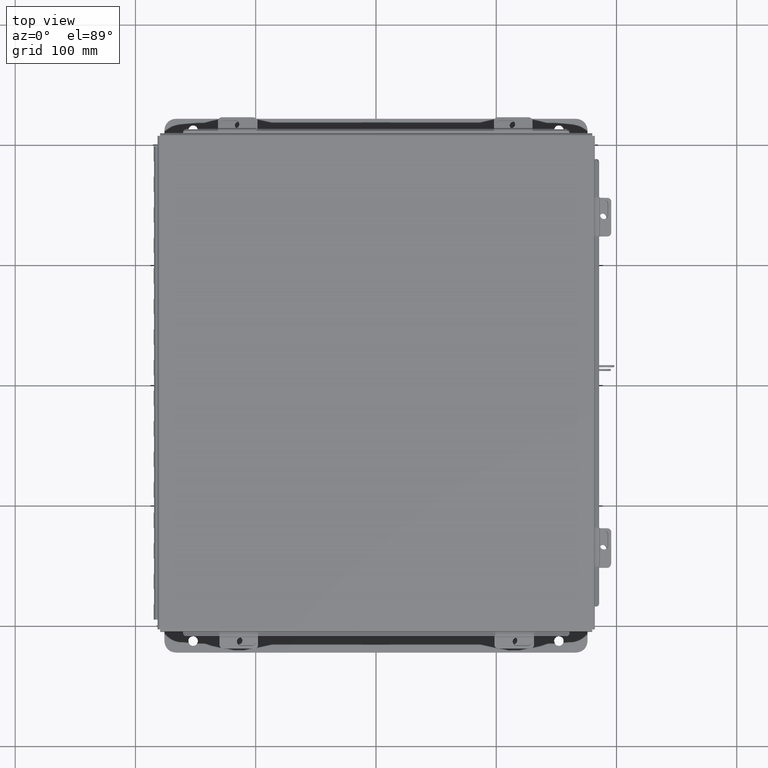
[diagram: clean part render]
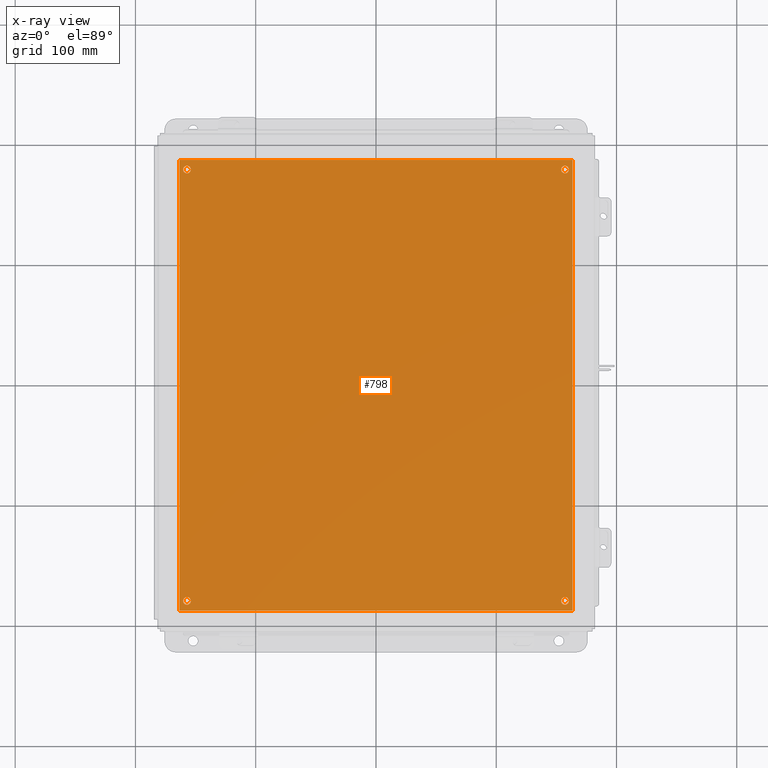
[diagram: x-ray — body ghosted, one internal face saturated and labeled with its STEP entity id]
A machine part, top view, then the same camera in x-ray: the body is ghosted and one INTERNAL B-rep face — a face not visible from any outside direction — is saturated and labeled: STEP entity #798.
In plain terms, the highlighted planar face has unit normal (0, 0, -1).
Its self-contained STEP definition (entity closure, byte-faithful):
#151 = CARTESIAN_POINT ( 'NONE',  ( 0.1249999999999997900, 14.43799999999999500, -0.07470000000000003000 ) ) ;
#310 = CARTESIAN_POINT ( 'NONE',  ( 12.87500000000000000, 14.75000000000000000, -0.07470000000000003000 ) ) ;
#398 = ORIENTED_EDGE ( 'NONE', *, *, #8877, .T. ) ;
#430 = AXIS2_PLACEMENT_3D ( 'NONE', #5881, #18082, #16366 ) ;
#484 = EDGE_CURVE ( 'NONE', #4854, #15565, #1032, .T. ) ;
#503 = LINE ( 'NONE', #6494, #8794 ) ;
#573 = EDGE_CURVE ( 'NONE', #19320, #10818, #7847, .T. ) ;
#798 = ADVANCED_FACE ( 'NONE', ( #7607, #11750, #19500, #15353, #11249 ), #16669, .T. ) ;
#876 = EDGE_CURVE ( 'NONE', #10818, #19320, #14374, .T. ) ;
#1007 = EDGE_LOOP ( 'NONE', ( #8386, #8163 ) ) ;
#1032 = CIRCLE ( 'NONE', #4428, 0.1250000000000000000 ) ;
#1408 = CARTESIAN_POINT ( 'NONE',  ( 0.3750000000000020000, 0.3120000000000015000, -0.07470000000000003000 ) ) ;
#1505 = VECTOR ( 'NONE', #15297, 39.37007874015748100 ) ;
#1537 = EDGE_CURVE ( 'NONE', #4058, #14163, #10493, .T. ) ;
#1556 = VERTEX_POINT ( 'NONE', #3627 ) ;
#1649 = AXIS2_PLACEMENT_3D ( 'NONE', #15442, #6130, #17031 ) ;
#1732 = EDGE_LOOP ( 'NONE', ( #6286, #11160, #13491, #11079 ) ) ;
#2009 = VERTEX_POINT ( 'NONE', #4570 ) ;
#2032 = VECTOR ( 'NONE', #10830, 39.37007874015748100 ) ;
#2668 = CARTESIAN_POINT ( 'NONE',  ( 12.50000000000000500, 14.43799999999999700, -0.07470000000000003000 ) ) ;
#3047 = CARTESIAN_POINT ( 'NONE',  ( 12.62500000000000700, 0.3120000000000058300, -0.07470000000000003000 ) ) ;
#3343 = CARTESIAN_POINT ( 'NONE',  ( 12.75000000000000400, 14.43799999999999700, -0.07470000000000003000 ) ) ;
#3627 = CARTESIAN_POINT ( 'NONE',  ( 0.1250000000000019200, 0.3120000000000015000, -0.07470000000000003000 ) ) ;
#3746 = DIRECTION ( 'NONE',  ( -0.0000000000000000000, -0.0000000000000000000, 1.000000000000000000 ) ) ;
#4058 = VERTEX_POINT ( 'NONE', #3343 ) ;
#4199 = DIRECTION ( 'NONE',  ( -1.000000000000000000, 0.0000000000000000000, 0.0000000000000000000 ) ) ;
#4428 = AXIS2_PLACEMENT_3D ( 'NONE', #9312, #10883, #11144 ) ;
#4570 = CARTESIAN_POINT ( 'NONE',  ( 0.0000000000000000000, 14.75000000000000000, -0.07470000000000003000 ) ) ;
#4602 = EDGE_LOOP ( 'NONE', ( #15460, #9423 ) ) ;
#4773 = EDGE_LOOP ( 'NONE', ( #5807, #5504 ) ) ;
#4854 = VERTEX_POINT ( 'NONE', #20091 ) ;
#5093 = AXIS2_PLACEMENT_3D ( 'NONE', #15552, #12578, #6173 ) ;
#5212 = LINE ( 'NONE', #6298, #8872 ) ;
#5251 = EDGE_CURVE ( 'NONE', #17360, #1556, #7442, .T. ) ;
#5504 = ORIENTED_EDGE ( 'NONE', *, *, #8203, .T. ) ;
#5807 = ORIENTED_EDGE ( 'NONE', *, *, #5251, .T. ) ;
#5881 = CARTESIAN_POINT ( 'NONE',  ( 12.62500000000000400, 14.43799999999999700, -0.07470000000000003000 ) ) ;
#6130 = DIRECTION ( 'NONE',  ( -0.0000000000000000000, -0.0000000000000000000, 1.000000000000000000 ) ) ;
#6173 = DIRECTION ( 'NONE',  ( -1.000000000000000000, 0.0000000000000000000, -0.0000000000000000000 ) ) ;
#6286 = ORIENTED_EDGE ( 'NONE', *, *, #16994, .F. ) ;
#6298 = CARTESIAN_POINT ( 'NONE',  ( 0.0000000000000000000, 0.0000000000000000000, -0.07470000000000003000 ) ) ;
#6494 = CARTESIAN_POINT ( 'NONE',  ( 0.0000000000000000000, 14.75000000000000000, -0.07470000000000003000 ) ) ;
#6568 = EDGE_LOOP ( 'NONE', ( #17183, #398 ) ) ;
#7192 = DIRECTION ( 'NONE',  ( -1.000000000000000000, 0.0000000000000000000, 0.0000000000000000000 ) ) ;
#7442 = CIRCLE ( 'NONE', #8446, 0.1250000000000000600 ) ;
#7607 = FACE_BOUND ( 'NONE', #4773, .T. ) ;
#7847 = CIRCLE ( 'NONE', #11758, 0.1249999999999993500 ) ;
#8163 = ORIENTED_EDGE ( 'NONE', *, *, #876, .T. ) ;
#8203 = EDGE_CURVE ( 'NONE', #1556, #17360, #11511, .T. ) ;
#8386 = ORIENTED_EDGE ( 'NONE', *, *, #573, .T. ) ;
#8446 = AXIS2_PLACEMENT_3D ( 'NONE', #13751, #18514, #13096 ) ;
#8571 = AXIS2_PLACEMENT_3D ( 'NONE', #17941, #8628, #19476 ) ;
#8614 = VERTEX_POINT ( 'NONE', #9497 ) ;
#8628 = DIRECTION ( 'NONE',  ( -0.0000000000000000000, -0.0000000000000000000, 1.000000000000000000 ) ) ;
#8794 = VECTOR ( 'NONE', #15808, 39.37007874015748100 ) ;
#8872 = VECTOR ( 'NONE', #9736, 39.37007874015748100 ) ;
#8877 = EDGE_CURVE ( 'NONE', #14163, #4058, #17692, .T. ) ;
#9089 = CARTESIAN_POINT ( 'NONE',  ( 12.62500000000000700, 0.3120000000000058300, -0.07470000000000003000 ) ) ;
#9312 = CARTESIAN_POINT ( 'NONE',  ( 0.2499999999999998100, 14.43799999999999500, -0.07470000000000003000 ) ) ;
#9423 = ORIENTED_EDGE ( 'NONE', *, *, #16150, .T. ) ;
#9497 = CARTESIAN_POINT ( 'NONE',  ( 0.0000000000000000000, 0.0000000000000000000, -0.07470000000000003000 ) ) ;
#9736 = DIRECTION ( 'NONE',  ( -0.0000000000000000000, -1.000000000000000000, -0.0000000000000000000 ) ) ;
#9802 = VERTEX_POINT ( 'NONE', #310 ) ;
#9883 = AXIS2_PLACEMENT_3D ( 'NONE', #13088, #3746, #14625 ) ;
#10315 = AXIS2_PLACEMENT_3D ( 'NONE', #3047, #10550, #4199 ) ;
#10493 = CIRCLE ( 'NONE', #430, 0.1249999999999993500 ) ;
#10550 = DIRECTION ( 'NONE',  ( -0.0000000000000000000, -0.0000000000000000000, 1.000000000000000000 ) ) ;
#10818 = VERTEX_POINT ( 'NONE', #11126 ) ;
#10830 = DIRECTION ( 'NONE',  ( 0.0000000000000000000, 1.000000000000000000, 0.0000000000000000000 ) ) ;
#10883 = DIRECTION ( 'NONE',  ( -0.0000000000000000000, -0.0000000000000000000, 1.000000000000000000 ) ) ;
#11079 = ORIENTED_EDGE ( 'NONE', *, *, #12288, .F. ) ;
#11126 = CARTESIAN_POINT ( 'NONE',  ( 12.50000000000000700, 0.3120000000000058300, -0.07470000000000003000 ) ) ;
#11144 = DIRECTION ( 'NONE',  ( -1.000000000000000000, 0.0000000000000000000, 0.0000000000000000000 ) ) ;
#11160 = ORIENTED_EDGE ( 'NONE', *, *, #13790, .F. ) ;
#11249 = FACE_OUTER_BOUND ( 'NONE', #1732, .T. ) ;
#11293 = CARTESIAN_POINT ( 'NONE',  ( 12.87500000000000000, 0.0000000000000000000, -0.07470000000000003000 ) ) ;
#11511 = CIRCLE ( 'NONE', #8571, 0.1250000000000000600 ) ;
#11750 = FACE_BOUND ( 'NONE', #1007, .T. ) ;
#11758 = AXIS2_PLACEMENT_3D ( 'NONE', #9089, #13168, #7192 ) ;
#12195 = CARTESIAN_POINT ( 'NONE',  ( 0.0000000000000000000, 0.0000000000000000000, -0.07470000000000003000 ) ) ;
#12288 = EDGE_CURVE ( 'NONE', #8614, #15123, #13928, .T. ) ;
#12578 = DIRECTION ( 'NONE',  ( 0.0000000000000000000, 0.0000000000000000000, -1.000000000000000000 ) ) ;
#13088 = CARTESIAN_POINT ( 'NONE',  ( 12.62500000000000400, 14.43799999999999700, -0.07470000000000003000 ) ) ;
#13096 = DIRECTION ( 'NONE',  ( -1.000000000000000000, 0.0000000000000000000, 0.0000000000000000000 ) ) ;
#13168 = DIRECTION ( 'NONE',  ( -0.0000000000000000000, -0.0000000000000000000, 1.000000000000000000 ) ) ;
#13491 = ORIENTED_EDGE ( 'NONE', *, *, #16911, .F. ) ;
#13751 = CARTESIAN_POINT ( 'NONE',  ( 0.2500000000000020000, 0.3120000000000015000, -0.07470000000000003000 ) ) ;
#13790 = EDGE_CURVE ( 'NONE', #9802, #2009, #503, .T. ) ;
#13928 = LINE ( 'NONE', #12195, #1505 ) ;
#14163 = VERTEX_POINT ( 'NONE', #2668 ) ;
#14374 = CIRCLE ( 'NONE', #10315, 0.1249999999999993500 ) ;
#14625 = DIRECTION ( 'NONE',  ( -1.000000000000000000, 0.0000000000000000000, 0.0000000000000000000 ) ) ;
#14719 = CIRCLE ( 'NONE', #1649, 0.1250000000000000000 ) ;
#15123 = VERTEX_POINT ( 'NONE', #11293 ) ;
#15297 = DIRECTION ( 'NONE',  ( 1.000000000000000000, 0.0000000000000000000, 0.0000000000000000000 ) ) ;
#15353 = FACE_BOUND ( 'NONE', #4602, .T. ) ;
#15435 = CARTESIAN_POINT ( 'NONE',  ( 12.75000000000000500, 0.3120000000000058300, -0.07470000000000003000 ) ) ;
#15442 = CARTESIAN_POINT ( 'NONE',  ( 0.2499999999999998100, 14.43799999999999500, -0.07470000000000003000 ) ) ;
#15460 = ORIENTED_EDGE ( 'NONE', *, *, #484, .T. ) ;
#15552 = CARTESIAN_POINT ( 'NONE',  ( 0.0000000000000000000, 0.0000000000000000000, -0.07470000000000003000 ) ) ;
#15565 = VERTEX_POINT ( 'NONE', #151 ) ;
#15808 = DIRECTION ( 'NONE',  ( -1.000000000000000000, -0.0000000000000000000, -0.0000000000000000000 ) ) ;
#16150 = EDGE_CURVE ( 'NONE', #15565, #4854, #14719, .T. ) ;
#16366 = DIRECTION ( 'NONE',  ( -1.000000000000000000, 0.0000000000000000000, 0.0000000000000000000 ) ) ;
#16669 = PLANE ( 'NONE',  #5093 ) ;
#16911 = EDGE_CURVE ( 'NONE', #15123, #9802, #19064, .T. ) ;
#16994 = EDGE_CURVE ( 'NONE', #2009, #8614, #5212, .T. ) ;
#17031 = DIRECTION ( 'NONE',  ( -1.000000000000000000, 0.0000000000000000000, 0.0000000000000000000 ) ) ;
#17183 = ORIENTED_EDGE ( 'NONE', *, *, #1537, .T. ) ;
#17360 = VERTEX_POINT ( 'NONE', #1408 ) ;
#17692 = CIRCLE ( 'NONE', #9883, 0.1249999999999993500 ) ;
#17941 = CARTESIAN_POINT ( 'NONE',  ( 0.2500000000000020000, 0.3120000000000015000, -0.07470000000000003000 ) ) ;
#18082 = DIRECTION ( 'NONE',  ( -0.0000000000000000000, -0.0000000000000000000, 1.000000000000000000 ) ) ;
#18514 = DIRECTION ( 'NONE',  ( -0.0000000000000000000, -0.0000000000000000000, 1.000000000000000000 ) ) ;
#18565 = CARTESIAN_POINT ( 'NONE',  ( 12.87500000000000000, 0.0000000000000000000, -0.07470000000000003000 ) ) ;
#19064 = LINE ( 'NONE', #18565, #2032 ) ;
#19320 = VERTEX_POINT ( 'NONE', #15435 ) ;
#19476 = DIRECTION ( 'NONE',  ( -1.000000000000000000, 0.0000000000000000000, 0.0000000000000000000 ) ) ;
#19500 = FACE_BOUND ( 'NONE', #6568, .T. ) ;
#20091 = CARTESIAN_POINT ( 'NONE',  ( 0.3749999999999998300, 14.43799999999999500, -0.07470000000000003000 ) ) ;